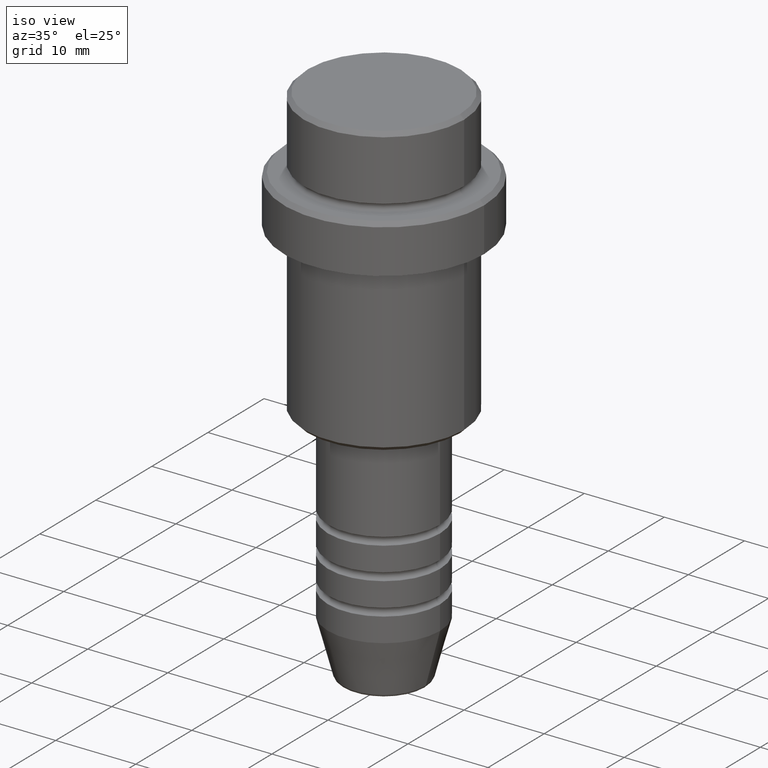
[diagram: clean part render]
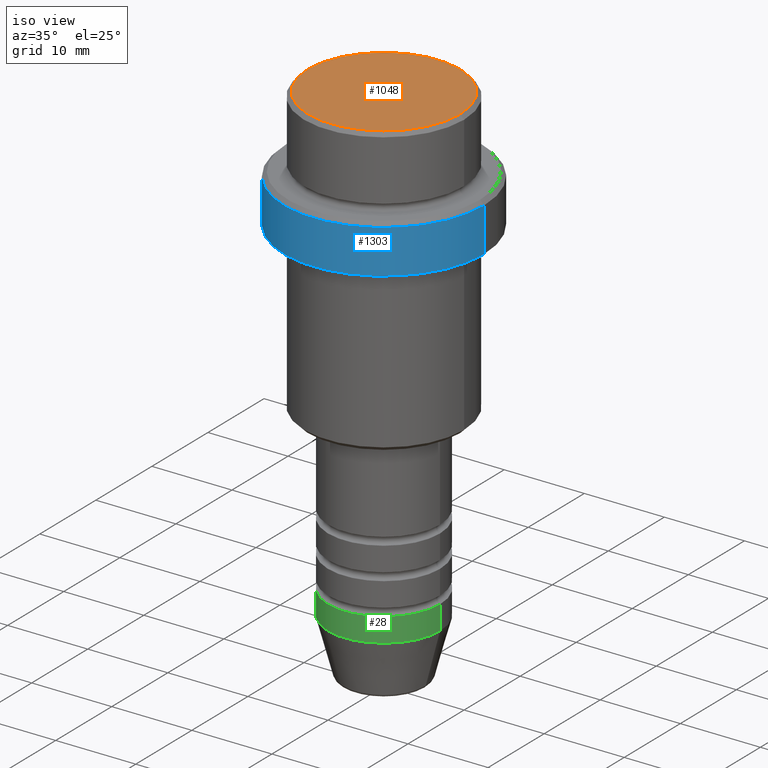
[diagram: same view with three faces highlighted in distinct colors, each labeled with its STEP entity id]
A machine part, iso view with three faces highlighted in distinct colors.
Their STEP definitions:

[orange] entity #1048 — the highlighted planar face has unit normal (0, -0, 1).
#36 = AXIS2_PLACEMENT_3D ( 'NONE', #698, #262, #503 ) ;
#154 = EDGE_CURVE ( 'NONE', #1022, #1294, #202, .T. ) ;
#197 = FACE_OUTER_BOUND ( 'NONE', #1305, .T. ) ;
#202 = CIRCLE ( 'NONE', #36, 9.500000000000001776 ) ;
#262 = DIRECTION ( 'NONE',  ( -0.000000000000000000, -0.000000000000000000, 1.000000000000000000 ) ) ;
#395 = DIRECTION ( 'NONE',  ( 0.000000000000000000, -0.000000000000000000, 1.000000000000000000 ) ) ;
#403 = PLANE ( 'NONE',  #439 ) ;
#439 = AXIS2_PLACEMENT_3D ( 'NONE', #724, #395, #1163 ) ;
#503 = DIRECTION ( 'NONE',  ( 1.000000000000000000, 0.000000000000000000, 0.000000000000000000 ) ) ;
#568 = DIRECTION ( 'NONE',  ( -0.000000000000000000, -0.000000000000000000, 1.000000000000000000 ) ) ;
#613 = AXIS2_PLACEMENT_3D ( 'NONE', #1315, #568, #1209 ) ;
#698 = CARTESIAN_POINT ( 'NONE',  ( 0.000000000000000000, 0.000000000000000000, 0.000000000000000000 ) ) ;
#724 = CARTESIAN_POINT ( 'NONE',  ( 0.000000000000000000, 0.000000000000000000, 0.000000000000000000 ) ) ;
#842 = ORIENTED_EDGE ( 'NONE', *, *, #1212, .T. ) ;
#898 = ORIENTED_EDGE ( 'NONE', *, *, #154, .T. ) ;
#923 = CARTESIAN_POINT ( 'NONE',  ( -9.500000000000001776, 0.000000000000000000, 0.000000000000000000 ) ) ;
#978 = CIRCLE ( 'NONE', #613, 9.500000000000001776 ) ;
#1022 = VERTEX_POINT ( 'NONE', #1281 ) ;
#1048 = ADVANCED_FACE ( 'NONE', ( #197 ), #403, .T. ) ;
#1163 = DIRECTION ( 'NONE',  ( 1.000000000000000000, 0.000000000000000000, 0.000000000000000000 ) ) ;
#1209 = DIRECTION ( 'NONE',  ( 1.000000000000000000, 0.000000000000000000, 0.000000000000000000 ) ) ;
#1212 = EDGE_CURVE ( 'NONE', #1294, #1022, #978, .T. ) ;
#1281 = CARTESIAN_POINT ( 'NONE',  ( 9.500000000000001776, 1.194030629168669469E-15, 0.000000000000000000 ) ) ;
#1294 = VERTEX_POINT ( 'NONE', #923 ) ;
#1305 = EDGE_LOOP ( 'NONE', ( #842, #898 ) ) ;
#1315 = CARTESIAN_POINT ( 'NONE',  ( 0.000000000000000000, 0.000000000000000000, 0.000000000000000000 ) ) ;

[blue] entity #1303 — the highlighted cylindrical surface (partial cylindrical patch) has radius 12.5 mm, axis along (-0, -0, 1).
#165 = VERTEX_POINT ( 'NONE', #272 ) ;
#169 = AXIS2_PLACEMENT_3D ( 'NONE', #287, #301, #509 ) ;
#179 = CIRCLE ( 'NONE', #1409, 12.50000000000000000 ) ;
#225 = LINE ( 'NONE', #230, #874 ) ;
#230 = CARTESIAN_POINT ( 'NONE',  ( 12.50000000000000000, 0.000000000000000000, 0.000000000000000000 ) ) ;
#251 = CARTESIAN_POINT ( 'NONE',  ( 12.50000000000000000, 0.000000000000000000, -15.00000000000000000 ) ) ;
#257 = CARTESIAN_POINT ( 'NONE',  ( -12.50000000000000000, 1.530808498934191521E-15, 0.000000000000000000 ) ) ;
#272 = CARTESIAN_POINT ( 'NONE',  ( -12.50000000000000000, 1.530808498934191521E-15, -15.00000000000000000 ) ) ;
#274 = CARTESIAN_POINT ( 'NONE',  ( 0.000000000000000000, 0.000000000000000000, -15.00000000000000000 ) ) ;
#287 = CARTESIAN_POINT ( 'NONE',  ( 0.000000000000000000, 0.000000000000000000, -9.500000000000005329 ) ) ;
#291 = DIRECTION ( 'NONE',  ( 1.000000000000000000, 0.000000000000000000, 0.000000000000000000 ) ) ;
#301 = DIRECTION ( 'NONE',  ( 0.000000000000000000, 0.000000000000000000, -1.000000000000000000 ) ) ;
#331 = CARTESIAN_POINT ( 'NONE',  ( 12.50000000000000000, 0.000000000000000000, -9.500000000000005329 ) ) ;
#386 = FACE_OUTER_BOUND ( 'NONE', #1058, .T. ) ;
#424 = VERTEX_POINT ( 'NONE', #687 ) ;
#432 = AXIS2_PLACEMENT_3D ( 'NONE', #819, #825, #291 ) ;
#509 = DIRECTION ( 'NONE',  ( 1.000000000000000000, 0.000000000000000000, 0.000000000000000000 ) ) ;
#625 = EDGE_CURVE ( 'NONE', #821, #424, #1178, .T. ) ;
#687 = CARTESIAN_POINT ( 'NONE',  ( -12.50000000000000000, 1.530808498934191521E-15, -9.500000000000005329 ) ) ;
#722 = ORIENTED_EDGE ( 'NONE', *, *, #1116, .T. ) ;
#794 = DIRECTION ( 'NONE',  ( -0.000000000000000000, -0.000000000000000000, 1.000000000000000000 ) ) ;
#804 = DIRECTION ( 'NONE',  ( 1.000000000000000000, 0.000000000000000000, 0.000000000000000000 ) ) ;
#810 = ORIENTED_EDGE ( 'NONE', *, *, #1349, .T. ) ;
#811 = CYLINDRICAL_SURFACE ( 'NONE', #432, 12.50000000000000000 ) ;
#819 = CARTESIAN_POINT ( 'NONE',  ( 0.000000000000000000, 0.000000000000000000, 0.000000000000000000 ) ) ;
#820 = LINE ( 'NONE', #257, #926 ) ;
#821 = VERTEX_POINT ( 'NONE', #331 ) ;
#825 = DIRECTION ( 'NONE',  ( -0.000000000000000000, -0.000000000000000000, 1.000000000000000000 ) ) ;
#874 = VECTOR ( 'NONE', #794, 1000.000000000000000 ) ;
#902 = EDGE_CURVE ( 'NONE', #165, #424, #820, .T. ) ;
#926 = VECTOR ( 'NONE', #1134, 1000.000000000000000 ) ;
#1058 = EDGE_LOOP ( 'NONE', ( #1363, #810, #722, #1197 ) ) ;
#1116 = EDGE_CURVE ( 'NONE', #1167, #821, #225, .T. ) ;
#1134 = DIRECTION ( 'NONE',  ( -0.000000000000000000, -0.000000000000000000, 1.000000000000000000 ) ) ;
#1167 = VERTEX_POINT ( 'NONE', #251 ) ;
#1178 = CIRCLE ( 'NONE', #169, 12.50000000000000000 ) ;
#1197 = ORIENTED_EDGE ( 'NONE', *, *, #625, .T. ) ;
#1303 = ADVANCED_FACE ( 'NONE', ( #386 ), #811, .T. ) ;
#1349 = EDGE_CURVE ( 'NONE', #165, #1167, #179, .T. ) ;
#1353 = DIRECTION ( 'NONE',  ( -0.000000000000000000, -0.000000000000000000, 1.000000000000000000 ) ) ;
#1363 = ORIENTED_EDGE ( 'NONE', *, *, #902, .F. ) ;
#1409 = AXIS2_PLACEMENT_3D ( 'NONE', #274, #1353, #804 ) ;

[green] entity #28 — the highlighted cylindrical surface (partial cylindrical patch) has radius 7 mm, axis along (-0, -0, 1).
#28 = ADVANCED_FACE ( 'NONE', ( #455 ), #438, .T. ) ;
#46 = DIRECTION ( 'NONE',  ( -0.000000000000000000, -0.000000000000000000, 1.000000000000000000 ) ) ;
#52 = EDGE_CURVE ( 'NONE', #670, #1394, #294, .T. ) ;
#54 = CARTESIAN_POINT ( 'NONE',  ( -7.000000000000000000, 8.572527594031473190E-16, -59.00000000000000000 ) ) ;
#64 = DIRECTION ( 'NONE',  ( -0.000000000000000000, -0.000000000000000000, 1.000000000000000000 ) ) ;
#117 = EDGE_CURVE ( 'NONE', #187, #1324, #721, .T. ) ;
#120 = ORIENTED_EDGE ( 'NONE', *, *, #52, .T. ) ;
#166 = CARTESIAN_POINT ( 'NONE',  ( 7.000000000000000000, 0.000000000000000000, 0.000000000000000000 ) ) ;
#187 = VERTEX_POINT ( 'NONE', #929 ) ;
#264 = AXIS2_PLACEMENT_3D ( 'NONE', #1325, #780, #1220 ) ;
#294 = CIRCLE ( 'NONE', #1113, 7.000000000000000000 ) ;
#302 = ORIENTED_EDGE ( 'NONE', *, *, #809, .F. ) ;
#338 = VECTOR ( 'NONE', #1304, 1000.000000000000000 ) ;
#350 = EDGE_LOOP ( 'NONE', ( #302, #120, #1173, #1094 ) ) ;
#438 = CYLINDRICAL_SURFACE ( 'NONE', #264, 7.000000000000000000 ) ;
#455 = FACE_OUTER_BOUND ( 'NONE', #350, .T. ) ;
#517 = AXIS2_PLACEMENT_3D ( 'NONE', #1032, #46, #1350 ) ;
#545 = CARTESIAN_POINT ( 'NONE',  ( -7.000000000000000000, 8.572527594031473190E-16, 0.000000000000000000 ) ) ;
#670 = VERTEX_POINT ( 'NONE', #54 ) ;
#691 = CARTESIAN_POINT ( 'NONE',  ( 0.000000000000000000, 0.000000000000000000, -59.00000000000000000 ) ) ;
#693 = CARTESIAN_POINT ( 'NONE',  ( 7.000000000000000000, 0.000000000000000000, -55.99999999999999289 ) ) ;
#706 = LINE ( 'NONE', #166, #1248 ) ;
#721 = CIRCLE ( 'NONE', #517, 7.000000000000000000 ) ;
#780 = DIRECTION ( 'NONE',  ( -0.000000000000000000, -0.000000000000000000, 1.000000000000000000 ) ) ;
#809 = EDGE_CURVE ( 'NONE', #670, #187, #1091, .T. ) ;
#929 = CARTESIAN_POINT ( 'NONE',  ( -7.000000000000000000, 8.572527594031473190E-16, -55.99999999999999289 ) ) ;
#1032 = CARTESIAN_POINT ( 'NONE',  ( 0.000000000000000000, 0.000000000000000000, -55.99999999999999289 ) ) ;
#1041 = DIRECTION ( 'NONE',  ( -0.000000000000000000, -0.000000000000000000, 1.000000000000000000 ) ) ;
#1091 = LINE ( 'NONE', #545, #338 ) ;
#1094 = ORIENTED_EDGE ( 'NONE', *, *, #117, .F. ) ;
#1113 = AXIS2_PLACEMENT_3D ( 'NONE', #691, #64, #1376 ) ;
#1173 = ORIENTED_EDGE ( 'NONE', *, *, #1381, .T. ) ;
#1220 = DIRECTION ( 'NONE',  ( 1.000000000000000000, 0.000000000000000000, 0.000000000000000000 ) ) ;
#1248 = VECTOR ( 'NONE', #1041, 1000.000000000000000 ) ;
#1280 = CARTESIAN_POINT ( 'NONE',  ( 7.000000000000000000, 0.000000000000000000, -59.00000000000000000 ) ) ;
#1304 = DIRECTION ( 'NONE',  ( -0.000000000000000000, -0.000000000000000000, 1.000000000000000000 ) ) ;
#1324 = VERTEX_POINT ( 'NONE', #693 ) ;
#1325 = CARTESIAN_POINT ( 'NONE',  ( 0.000000000000000000, 0.000000000000000000, 0.000000000000000000 ) ) ;
#1350 = DIRECTION ( 'NONE',  ( 1.000000000000000000, 0.000000000000000000, 0.000000000000000000 ) ) ;
#1376 = DIRECTION ( 'NONE',  ( 1.000000000000000000, 0.000000000000000000, 0.000000000000000000 ) ) ;
#1381 = EDGE_CURVE ( 'NONE', #1394, #1324, #706, .T. ) ;
#1394 = VERTEX_POINT ( 'NONE', #1280 ) ;